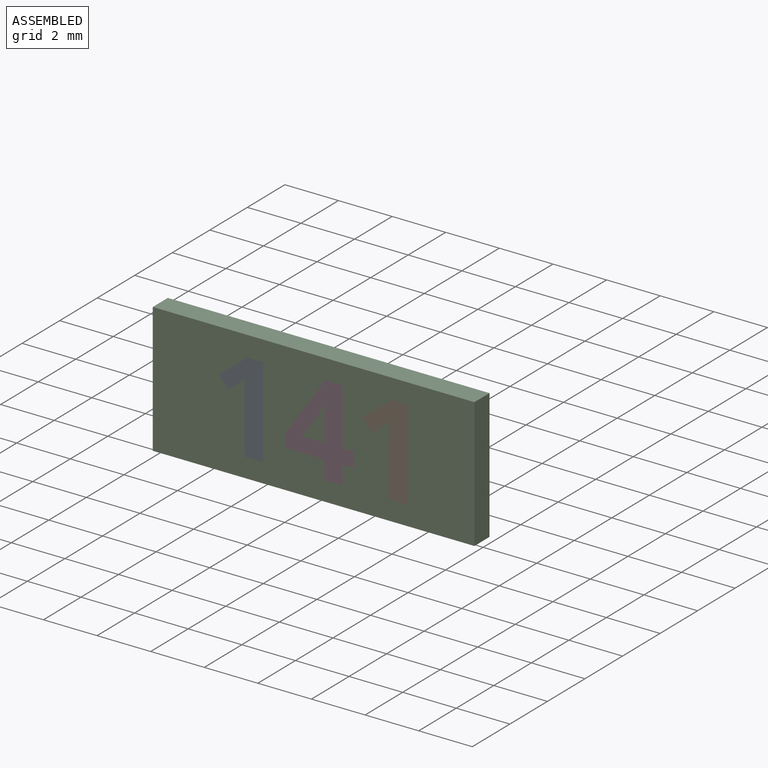
[diagram: assembled view]
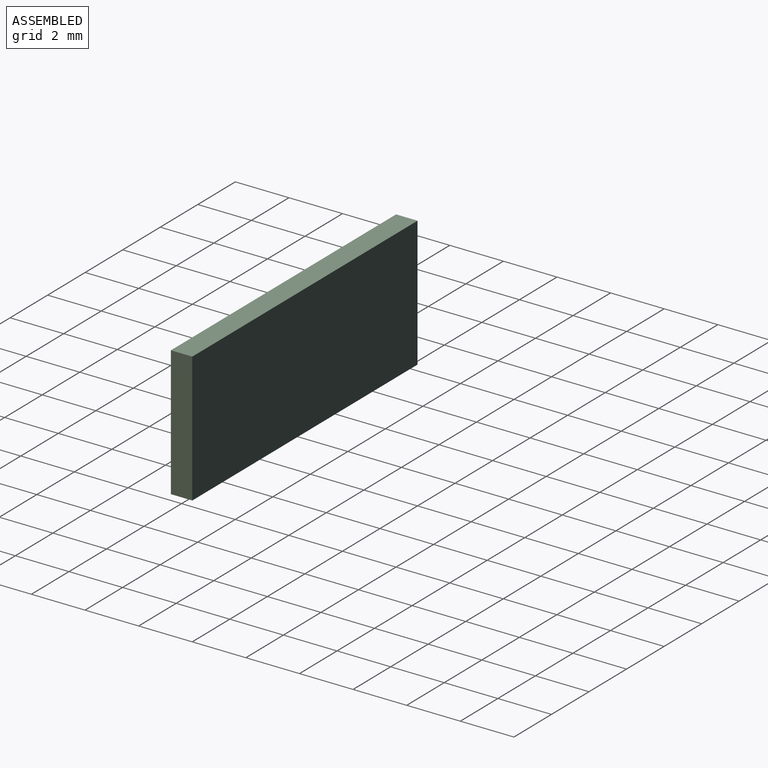
[diagram: assembled view, second angle]
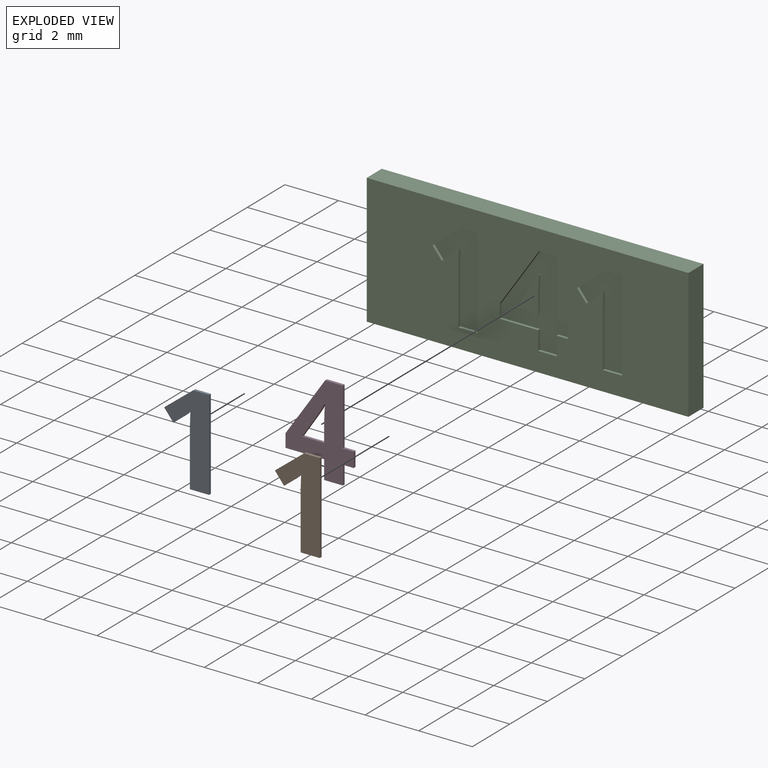
[diagram: exploded view]
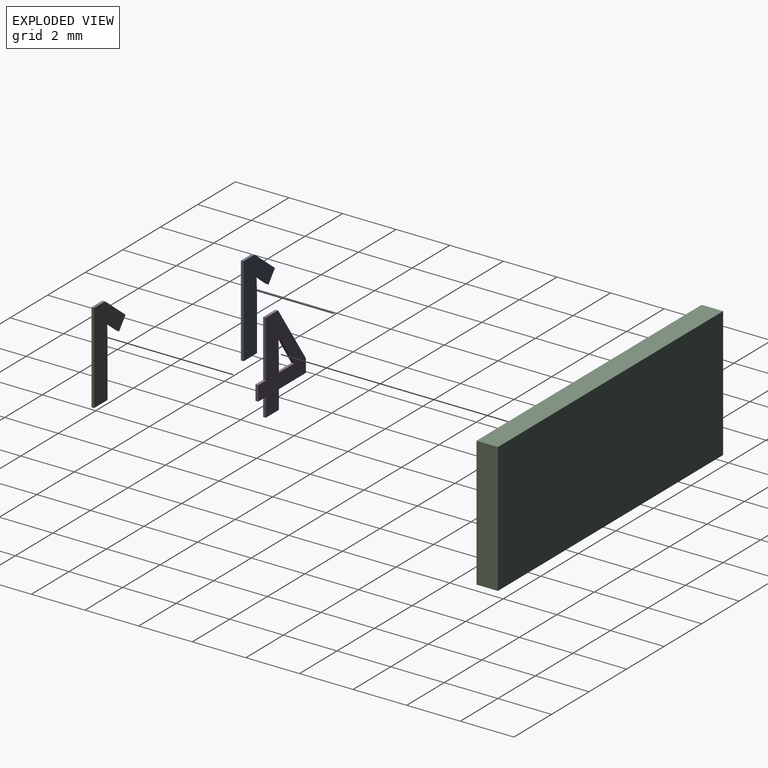
[diagram: exploded view, second angle]
ASSEMBLY  parts=4 mates=3
PART A: 12 faces, bbox 1.7x0.1x3.4 mm
  f0: plane 3.37x1.67mm, normal (0,-1,0), area 2.9mm2, adj f1,f2,f3,f4,f5,f6,f7,f9
  f1: plane 0.59x0.1mm, normal (0,0,1), area 0.1mm2, adj f0,f2,f8,f10
  f2: plane 1.09x0.86mm, normal (-0.62,0,0.78), area 0.1mm2, adj f0,f1,f3,f8
  f3: plane 0.43x0.34mm, normal (-0.78,0,-0.63), area 0.1mm2, adj f0,f2,f4,f8
  f4: plane 0.39x0.31mm, normal (0.63,0,-0.78), area 0mm2, adj f0,f3,f5,f8
  f5: extruded ~0.25x0.23mm, area 0mm2, adj f0,f4,f6,f8
  f6: plane 0.35x0.1mm, normal (-1,0,0.03), area 0mm2, adj f0,f5,f7,f8
  f7: plane 0.32x0.1mm, normal (-1,0,0.02), area 0mm2, adj f0,f6,f8,f9
  f8: plane 3.37x1.67mm, normal (0,1,0), area 2.9mm2, adj f1,f2,f3,f4,f5,f6,f7,f9
  f9: plane 1.95x0.1mm, normal (-1,0,0), area 0.2mm2, adj f0,f7,f8,f11
  f10: plane 3.37x0.1mm, normal (1,0,0), area 0.3mm2, adj f0,f1,f8,f11
  f11: plane 0.71x0.1mm, normal (0,0,-1), area 0.1mm2, adj f0,f8,f9,f10
PART B: same geometry as A
PART C: 48 faces, bbox 12x0.8x4.9 mm
  f0: plane 12x4.85mm, normal (0,-1,0), area 47.5mm2, adj f1,f2,f3,f4,f6,f7,f8,f9
  f1: plane 12x0.8mm, normal (0,0,-1), area 9.6mm2, adj f0,f2,f4,f5
  f2: plane 4.85x0.8mm, normal (1,0,0), area 3.9mm2, adj f0,f1,f3,f5
  f3: plane 12x0.8mm, normal (0,0,1), area 9.6mm2, adj f0,f2,f4,f5
  f4: plane 4.85x0.8mm, normal (-1,0,0), area 3.9mm2, adj f0,f1,f3,f5
  f5: plane 12x4.85mm, normal (0,1,0), area 58.2mm2, adj f1,f2,f3,f4
  f6: plane 0.55x0.1mm, normal (-1,0,0), area 0.1mm2, adj f0,f7,f23,f24
  f7: plane 0.41x0.1mm, normal (0,0,-1), area 0mm2, adj f0,f6,f8,f24
  f8: plane 2.12x0.1mm, normal (-1,0,0), area 0.2mm2, adj f0,f7,f9,f24
  f9: plane 0.66x0.1mm, normal (0,0,-1), area 0.1mm2, adj f0,f8,f10,f24
  f10: plane 2.18x1.48mm, normal (0.83,0,-0.56), area 0.3mm2, adj f0,f9,f11,f24
  f11: plane 0.5x0.1mm, normal (1,0,0), area 0mm2, adj f0,f10,f12,f24
  f12: plane 1.44x0.1mm, normal (0,0,1), area 0.1mm2, adj f0,f11,f13,f24
  f13: plane 0.7x0.1mm, normal (1,0,0), area 0.1mm2, adj f0,f12,f14,f24
  f14: plane 0.7x0.1mm, normal (0,0,1), area 0.1mm2, adj f0,f13,f15,f24
  f15: plane 0.7x0.1mm, normal (-1,0,0), area 0.1mm2, adj f0,f14,f23,f24
  f16: plane 0.81x0.1mm, normal (0,0,-1), area 0.1mm2, adj f17,f22,f24,f25
  f17: plane 0.93x0.62mm, normal (-0.83,0,0.55), area 0.1mm2, adj f16,f18,f24,f25
  f18: extruded ~0.37x0.21mm, area 0mm2, adj f17,f19,f24,f25
  f19: plane 0.1x0.02mm, normal (0,0,1), area 0mm2, adj f18,f20,f24,f25
  f20: extruded ~0.32x0.1mm, area 0mm2, adj f19,f21,f24,f25
  f21: extruded ~0.42x0.1mm, area 0mm2, adj f20,f22,f24,f25
  f22: plane 0.57x0.1mm, normal (1,0,0), area 0.1mm2, adj f16,f21,f24,f25
  f23: plane 0.41x0.1mm, normal (0,0,1), area 0mm2, adj f0,f6,f15,f24
  f24: plane 3.37x2.54mm, normal (0,-1,0), area 4.3mm2, adj f6,f7,f8,f9,f10,f11,f12,f13
  f25: plane 1.3x0.84mm, normal (0,-1,0), area 0.5mm2, adj f16,f17,f18,f19,f20,f21,f22
  f26: plane 3.37x0.1mm, normal (-1,0,0), area 0.3mm2, adj f0,f27,f35,f36
  f27: plane 0.59x0.1mm, normal (0,0,-1), area 0.1mm2, adj f0,f26,f28,f36
  f28: plane 1.09x0.86mm, normal (0.62,0,-0.78), area 0.1mm2, adj f0,f27,f29,f36
  f29: plane 0.43x0.34mm, normal (0.78,0,0.63), area 0.1mm2, adj f0,f28,f30,f36
  f30: plane 0.39x0.31mm, normal (-0.63,0,0.78), area 0mm2, adj f0,f29,f31,f36
  f31: extruded ~0.25x0.23mm, area 0mm2, adj f0,f30,f32,f36
  f32: plane 0.35x0.1mm, normal (1,0,-0.03), area 0mm2, adj f0,f31,f33,f36
  f33: plane 0.32x0.1mm, normal (1,0,-0.02), area 0mm2, adj f0,f32,f34,f36
  f34: plane 1.95x0.1mm, normal (1,0,0), area 0.2mm2, adj f0,f33,f35,f36
  f35: plane 0.71x0.1mm, normal (0,0,1), area 0.1mm2, adj f0,f26,f34,f36
  f36: plane 3.37x1.67mm, normal (0,-1,0), area 2.9mm2, adj f26,f27,f28,f29,f30,f31,f32,f33
  f37: plane 3.37x0.1mm, normal (-1,0,0), area 0.3mm2, adj f0,f38,f46,f47
  f38: plane 0.59x0.1mm, normal (0,0,-1), area 0.1mm2, adj f0,f37,f39,f47
  f39: plane 1.09x0.86mm, normal (0.62,0,-0.78), area 0.1mm2, adj f0,f38,f40,f47
  f40: plane 0.43x0.34mm, normal (0.78,0,0.63), area 0.1mm2, adj f0,f39,f41,f47
  f41: plane 0.39x0.31mm, normal (-0.63,0,0.78), area 0mm2, adj f0,f40,f42,f47
  f42: extruded ~0.25x0.23mm, area 0mm2, adj f0,f41,f43,f47
  f43: plane 0.35x0.1mm, normal (1,0,-0.03), area 0mm2, adj f0,f42,f44,f47
  f44: plane 0.32x0.1mm, normal (1,0,-0.02), area 0mm2, adj f0,f43,f45,f47
  f45: plane 1.95x0.1mm, normal (1,0,0), area 0.2mm2, adj f0,f44,f46,f47
  f46: plane 0.71x0.1mm, normal (0,0,1), area 0.1mm2, adj f0,f37,f45,f47
  f47: plane 3.37x1.67mm, normal (0,-1,0), area 2.9mm2, adj f37,f38,f39,f40,f41,f42,f43,f44
PART D: 20 faces, bbox 2.5x0.1x3.4 mm
  f0: plane 3.37x2.54mm, normal (0,-1,0), area 4.3mm2, adj f1,f2,f3,f4,f5,f6,f7,f8
  f1: plane 0.41x0.1mm, normal (0,0,1), area 0mm2, adj f0,f2,f13,f15
  f2: plane 2.12x0.1mm, normal (1,0,0), area 0.2mm2, adj f0,f1,f3,f13
  f3: plane 0.66x0.1mm, normal (0,0,1), area 0.1mm2, adj f0,f2,f4,f13
  f4: plane 2.18x1.48mm, normal (-0.83,0,0.56), area 0.3mm2, adj f0,f3,f5,f13
  f5: plane 0.5x0.1mm, normal (-1,0,0), area 0mm2, adj f0,f4,f6,f13
  f6: plane 1.44x0.1mm, normal (0,0,-1), area 0.1mm2, adj f0,f5,f7,f13
  f7: plane 0.7x0.1mm, normal (-1,0,0), area 0.1mm2, adj f0,f6,f8,f13
  f8: plane 0.7x0.1mm, normal (0,0,-1), area 0.1mm2, adj f0,f7,f13,f14
  f9: plane 0.93x0.62mm, normal (0.83,0,-0.55), area 0.1mm2, adj f0,f10,f13,f18
  f10: extruded ~0.37x0.21mm, area 0mm2, adj f0,f9,f11,f13
  f11: plane 0.1x0.02mm, normal (0,0,-1), area 0mm2, adj f0,f10,f12,f13
  f12: extruded ~0.32x0.1mm, area 0mm2, adj f0,f11,f13,f17
  f13: plane 3.37x2.54mm, normal (0,1,0), area 4.3mm2, adj f1,f2,f3,f4,f5,f6,f7,f8
  f14: plane 0.7x0.1mm, normal (1,0,0), area 0.1mm2, adj f0,f8,f13,f16
  f15: plane 0.55x0.1mm, normal (1,0,0), area 0.1mm2, adj f0,f1,f13,f16
  f16: plane 0.41x0.1mm, normal (0,0,-1), area 0mm2, adj f0,f13,f14,f15
  f17: extruded ~0.42x0.1mm, area 0mm2, adj f0,f12,f13,f19
  f18: plane 0.81x0.1mm, normal (0,0,1), area 0.1mm2, adj f0,f9,f13,f19
  f19: plane 0.57x0.1mm, normal (-1,0,0), area 0.1mm2, adj f0,f13,f17,f18
PLACE A t=(-4.29,0.38,0)mm
PLACE B t=(1.1,0.38,0)mm
PLACE C t=(-0.03,0.38,0)mm
PLACE D t=(-1.26,0.38,0)mm
MATE fastened B.f0 <-> C.f0  axis (0,-1,0) through (2.78,-0.42,-1.7)mm
MATE fastened D.f0 <-> C.f0  axis (0,-1,0) through (0.36,-0.42,-1.7)mm
MATE fastened A.f0 <-> C.f0  axis (0,-1,0) through (-2.62,-0.42,-1.7)mm
